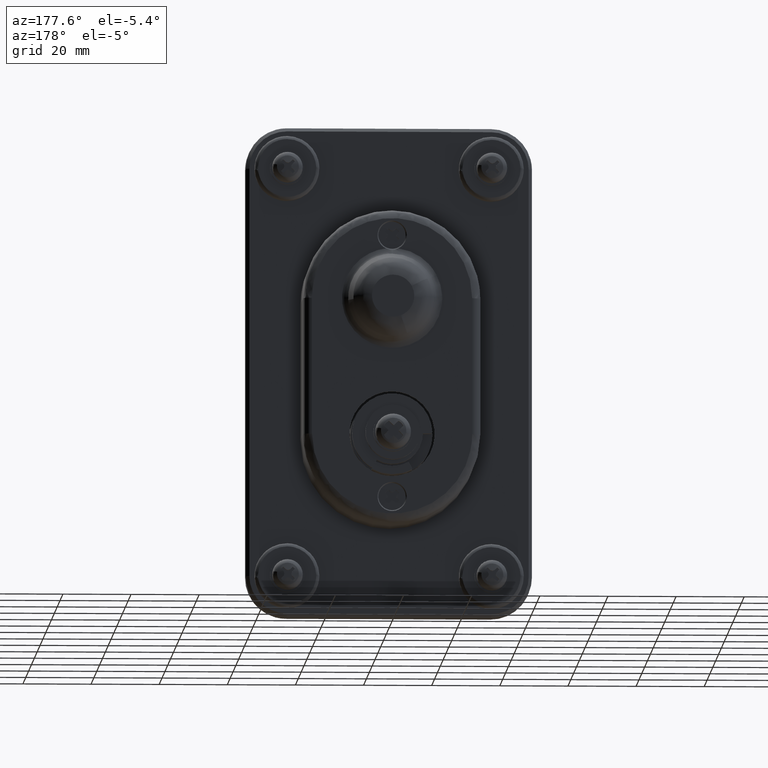
[diagram: clean part render]
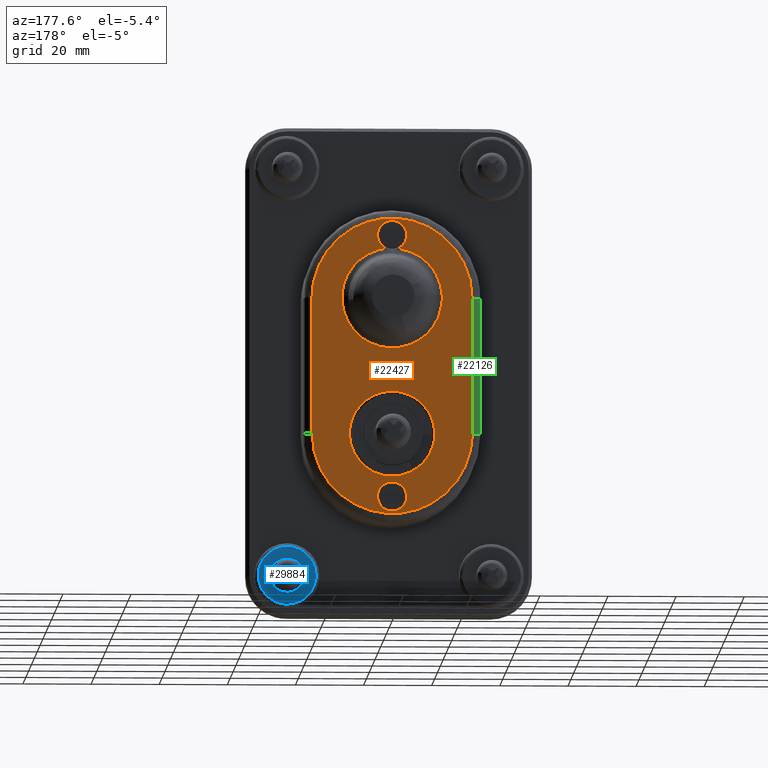
[diagram: same view with three faces highlighted in distinct colors, each labeled with its STEP entity id]
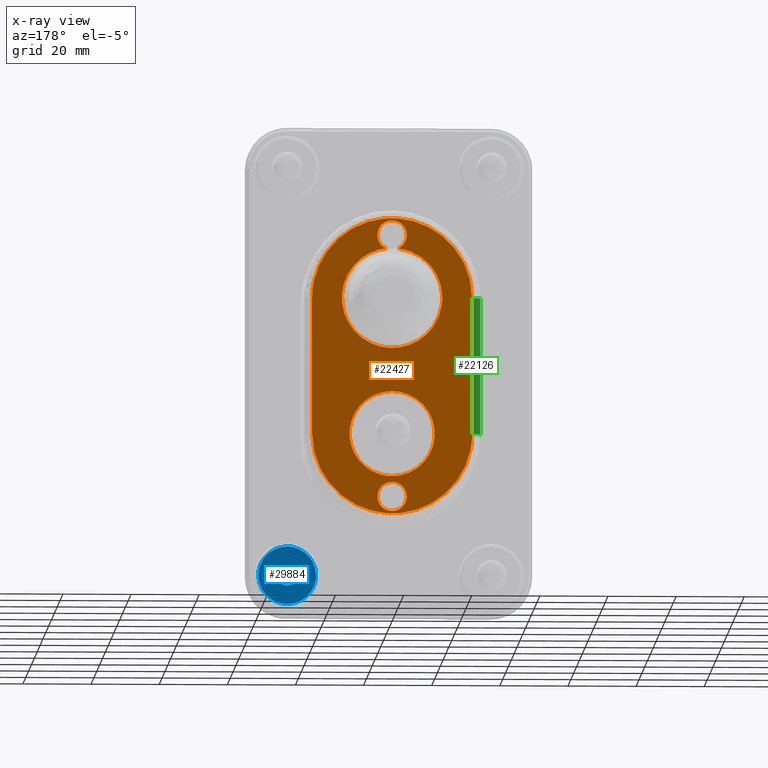
[diagram: x-ray of the same camera — body ghosted, the three highlighted faces saturated]
A machine part, auxiliary view with three faces highlighted in distinct colors.
The next image is the same camera in x-ray (body ghosted, the three faces saturated) — at least one of them is partly hidden behind the body in this view.
Their STEP definitions:

[orange] entity #22427 — the highlighted face is a freeform B-spline surface patch.
#19935=CARTESIAN_POINT('',(-5.323928E-018,-12.412620924720960,1.475412409796780));
#19936=VERTEX_POINT('',#19935);
#19942=CARTESIAN_POINT('',(0.0,0.0,-12.499999999983940));
#19943=VERTEX_POINT('',#19942);
#19944=CARTESIAN_POINT('',(-5.323928E-018,-12.412620924720958,1.475412409796780));
#19945=CARTESIAN_POINT('',(0.0,-12.499999999999995,0.740293651896161));
#19946=CARTESIAN_POINT('',(0.0,-12.500000000000000,1.606537E-011));
#19947=CARTESIAN_POINT('',(0.0,-12.499999999999998,-12.499999999983935));
#19948=CARTESIAN_POINT('',(0.0,0.0,-12.499999999983940));
#19956=(BOUNDED_CURVE()B_SPLINE_CURVE(2,(#19944,#19945,#19946,#19947,#19948),.UNSPECIFIED.,.F.,.U.)B_SPLINE_CURVE_WITH_KNOTS((3,2,3),(0.229562684873946,0.250000000000000,0.500000000000000),.UNSPECIFIED.)CURVE()GEOMETRIC_REPRESENTATION_ITEM()RATIONAL_B_SPLINE_CURVE((0.956027168459226,0.976056195955301,1.0,0.707106781186547,1.0))REPRESENTATION_ITEM(''));
#19957=EDGE_CURVE('',#19936,#19943,#19956,.T.);
#19959=CARTESIAN_POINT('',(-5.204170E-018,12.476684980260870,-0.763106744373471));
#19960=VERTEX_POINT('',#19959);
#19961=CARTESIAN_POINT('',(0.0,0.0,-12.499999999983940));
#19962=CARTESIAN_POINT('',(0.0,11.758825835936333,-12.499999999983933));
#19963=CARTESIAN_POINT('',(-5.204170E-018,12.476684980260867,-0.763106744373471));
#19971=(BOUNDED_CURVE()B_SPLINE_CURVE(2,(#19961,#19962,#19963),.UNSPECIFIED.,.F.,.U.)B_SPLINE_CURVE_WITH_KNOTS((3,3),(0.500000000000000,0.739332962236332),.UNSPECIFIED.)CURVE()GEOMETRIC_REPRESENTATION_ITEM()RATIONAL_B_SPLINE_CURVE((1.0,0.719603993289769,0.976072041661121))REPRESENTATION_ITEM(''));
#19972=EDGE_CURVE('',#19943,#19960,#19971,.T.);
#20046=CARTESIAN_POINT('',(0.0,0.0,12.500000000016071));
#20047=VERTEX_POINT('',#20046);
#20048=CARTESIAN_POINT('',(-5.204170E-018,12.476684980260870,-0.763106744373471));
#20049=CARTESIAN_POINT('',(0.0,12.499999999999996,-0.381909541420691));
#20050=CARTESIAN_POINT('',(0.0,12.500000000000000,1.606537E-011));
#20051=CARTESIAN_POINT('',(0.0,12.499999999999998,12.500000000016064));
#20052=CARTESIAN_POINT('',(0.0,0.0,12.500000000016071));
#20060=(BOUNDED_CURVE()B_SPLINE_CURVE(2,(#20048,#20049,#20050,#20051,#20052),.UNSPECIFIED.,.F.,.U.)B_SPLINE_CURVE_WITH_KNOTS((3,2,3),(0.739332962236331,0.750000000000000,1.0),.UNSPECIFIED.)CURVE()GEOMETRIC_REPRESENTATION_ITEM()RATIONAL_B_SPLINE_CURVE((0.976072041661119,0.987502787896777,1.0,0.707106781186547,1.0))REPRESENTATION_ITEM(''));
#20061=EDGE_CURVE('',#19960,#20047,#20060,.T.);
#20063=CARTESIAN_POINT('',(0.0,0.0,12.500000000016071));
#20064=CARTESIAN_POINT('',(0.0,-11.102195556714531,12.500000000016065));
#20065=CARTESIAN_POINT('',(-5.323928E-018,-12.412620924720958,1.475412409796780));
#20073=(BOUNDED_CURVE()B_SPLINE_CURVE(2,(#20063,#20064,#20065),.UNSPECIFIED.,.F.,.U.)B_SPLINE_CURVE_WITH_KNOTS((3,3),(0.0,0.229562684873946),.UNSPECIFIED.)CURVE()GEOMETRIC_REPRESENTATION_ITEM()RATIONAL_B_SPLINE_CURVE((1.0,0.731050585231246,0.956027168459226))REPRESENTATION_ITEM(''));
#20074=EDGE_CURVE('',#20047,#19936,#20073,.T.);
#20115=CARTESIAN_POINT('',(2.825475E-010,-4.266744777370700,-19.033750418427051));
#20116=VERTEX_POINT('',#20115);
#20122=CARTESIAN_POINT('',(0.0,1.608669E-011,-22.800000058369331));
#20123=VERTEX_POINT('',#20122);
#20124=CARTESIAN_POINT('',(2.825475E-010,-4.266744777370700,-19.033750418427040));
#20125=CARTESIAN_POINT('',(0.0,-3.795604028190424,-22.800000058369331));
#20126=CARTESIAN_POINT('',(0.0,1.608669E-011,-22.800000058369331));
#20134=(BOUNDED_CURVE()B_SPLINE_CURVE(2,(#20124,#20125,#20126),.UNSPECIFIED.,.F.,.U.)B_SPLINE_CURVE_WITH_KNOTS((3,3),(0.271473929146011,0.500000000000000),.UNSPECIFIED.)CURVE()GEOMETRIC_REPRESENTATION_ITEM()RATIONAL_B_SPLINE_CURVE((0.954005429934510,0.732265054099136,1.0))REPRESENTATION_ITEM(''));
#20135=EDGE_CURVE('',#20116,#20123,#20134,.T.);
#20137=CARTESIAN_POINT('',(3.246926E-010,4.299836327879188,-18.462475894437681));
#20138=VERTEX_POINT('',#20137);
#20139=CARTESIAN_POINT('',(0.0,1.608669E-011,-22.800000058369331));
#20140=CARTESIAN_POINT('',(0.0,4.300000058401662,-22.800000058369324));
#20141=CARTESIAN_POINT('',(0.0,4.300000058401662,-18.499999999983750));
#20142=CARTESIAN_POINT('',(0.0,4.300000058401662,-18.481237588809112));
#20143=CARTESIAN_POINT('',(3.246926E-010,4.299836327879188,-18.462475894437681));
#20151=(BOUNDED_CURVE()B_SPLINE_CURVE(2,(#20139,#20140,#20141,#20142,#20143),.UNSPECIFIED.,.F.,.U.)B_SPLINE_CURVE_WITH_KNOTS((3,2,3),(0.500000000000000,0.750000000000000,0.751539894530859),.UNSPECIFIED.)CURVE()GEOMETRIC_REPRESENTATION_ITEM()RATIONAL_B_SPLINE_CURVE((1.0,0.707106781186548,1.0,0.998195901336894,0.996414027647104))REPRESENTATION_ITEM(''));
#20152=EDGE_CURVE('',#20123,#20138,#20151,.T.);
#20232=CARTESIAN_POINT('',(0.0,1.608669E-011,-14.199999941598181));
#20233=VERTEX_POINT('',#20232);
#20234=CARTESIAN_POINT('',(3.246926E-010,4.299836327879188,-18.462475894437677));
#20235=CARTESIAN_POINT('',(0.0,4.262638258712507,-14.199999941598170));
#20236=CARTESIAN_POINT('',(0.0,1.608669E-011,-14.199999941598181));
#20244=(BOUNDED_CURVE()B_SPLINE_CURVE(2,(#20234,#20235,#20236),.UNSPECIFIED.,.F.,.U.)B_SPLINE_CURVE_WITH_KNOTS((3,3),(0.751539894530859,1.0),.UNSPECIFIED.)CURVE()GEOMETRIC_REPRESENTATION_ITEM()RATIONAL_B_SPLINE_CURVE((0.996414027647103,0.708910879849654,1.0))REPRESENTATION_ITEM(''));
#20245=EDGE_CURVE('',#20138,#20233,#20244,.T.);
#20247=CARTESIAN_POINT('',(0.0,1.608669E-011,-14.199999941598181));
#20248=CARTESIAN_POINT('',(0.0,-4.300000058369487,-14.199999941598175));
#20249=CARTESIAN_POINT('',(0.0,-4.300000058369488,-18.499999999983750));
#20250=CARTESIAN_POINT('',(0.0,-4.300000058369489,-18.767911194259121));
#20251=CARTESIAN_POINT('',(2.825475E-010,-4.266744777370700,-19.033750418427040));
#20259=(BOUNDED_CURVE()B_SPLINE_CURVE(2,(#20247,#20248,#20249,#20250,#20251),.UNSPECIFIED.,.F.,.U.)B_SPLINE_CURVE_WITH_KNOTS((3,2,3),(0.0,0.250000000000000,0.271473929146011),.UNSPECIFIED.)CURVE()GEOMETRIC_REPRESENTATION_ITEM()RATIONAL_B_SPLINE_CURVE((1.0,0.707106781186548,1.0,0.974841727087411,0.954005429934510))REPRESENTATION_ITEM(''));
#20260=EDGE_CURVE('',#20233,#20116,#20259,.T.);
#20309=CARTESIAN_POINT('',(5.007169E-012,2.418673063347878,62.055245404021598));
#20310=VERTEX_POINT('',#20309);
#20316=CARTESIAN_POINT('',(0.0,-1.828868924395015,54.608276221751503));
#20317=VERTEX_POINT('',#20316);
#20318=CARTESIAN_POINT('',(5.007169E-012,2.418673063347878,62.055245404021598));
#20319=CARTESIAN_POINT('',(0.0,1.323987593371438,62.799964725971272));
#20320=CARTESIAN_POINT('',(0.0,1.608669E-011,62.799964725971293));
#20321=CARTESIAN_POINT('',(0.0,-3.445848762328710,62.799964725971286));
#20322=CARTESIAN_POINT('',(0.0,-4.196680893643892,59.436911826664193));
#20323=CARTESIAN_POINT('',(0.0,-4.947513024959075,56.073858927357101));
#20324=CARTESIAN_POINT('',(0.0,-1.828868924395013,54.608276221751510));
#20332=(BOUNDED_CURVE()B_SPLINE_CURVE(2,(#20318,#20319,#20320,#20321,#20322,#20323,#20324),.UNSPECIFIED.,.F.,.U.)B_SPLINE_CURVE_WITH_KNOTS((3,2,2,3),(0.388919149487421,0.500000000000000,0.750000000000000,1.0),.UNSPECIFIED.)CURVE()GEOMETRIC_REPRESENTATION_ITEM()RATIONAL_B_SPLINE_CURVE((0.891537164882797,0.902404712095664,1.0,0.780350781763946,1.0,0.780350781763946,1.0))REPRESENTATION_ITEM(''));
#20333=EDGE_CURVE('',#20310,#20317,#20332,.T.);
#20335=CARTESIAN_POINT('',(1.054721E-016,1.828868924427200,54.608276221751503));
#20336=VERTEX_POINT('',#20335);
#20362=CARTESIAN_POINT('',(1.675138E-011,4.195279574568979,59.443166551383271));
#20363=VERTEX_POINT('',#20362);
#20364=CARTESIAN_POINT('',(0.0,1.828868924427192,54.608276221751517));
#20365=CARTESIAN_POINT('',(0.0,4.947513024991250,56.073858927357101));
#20366=CARTESIAN_POINT('',(0.0,4.196680893676064,59.436911826664193));
#20367=CARTESIAN_POINT('',(0.0,4.195982564996333,59.440039711304571));
#20368=CARTESIAN_POINT('',(1.675138E-011,4.195279574568979,59.443166551383271));
#20376=(BOUNDED_CURVE()B_SPLINE_CURVE(2,(#20364,#20365,#20366,#20367,#20368),.UNSPECIFIED.,.F.,.U.)B_SPLINE_CURVE_WITH_KNOTS((3,2,3),(0.0,0.250000000000000,0.250297888328569),.UNSPECIFIED.)CURVE()GEOMETRIC_REPRESENTATION_ITEM()RATIONAL_B_SPLINE_CURVE((1.0,0.780350781763946,1.0,0.999738276246032,0.999477176207678))REPRESENTATION_ITEM(''));
#20377=EDGE_CURVE('',#20336,#20363,#20376,.T.);
#20449=CARTESIAN_POINT('',(1.675138E-011,4.195279574568980,59.443166551383271));
#20450=CARTESIAN_POINT('',(0.0,3.822776499686377,61.100027683725344));
#20451=CARTESIAN_POINT('',(5.007169E-012,2.418673063347879,62.055245404021605));
#20459=(BOUNDED_CURVE()B_SPLINE_CURVE(2,(#20449,#20450,#20451),.UNSPECIFIED.,.F.,.U.)B_SPLINE_CURVE_WITH_KNOTS((3,3),(0.250297888328569,0.388919149487422),.UNSPECIFIED.)CURVE()GEOMETRIC_REPRESENTATION_ITEM()RATIONAL_B_SPLINE_CURVE((0.999477176207678,0.877975213444729,0.891537164882798))REPRESENTATION_ITEM(''));
#20460=EDGE_CURVE('',#20363,#20310,#20459,.T.);
#21310=CARTESIAN_POINT('',(4.288997E-016,12.989398401670901,46.929831731011546));
#21311=VERTEX_POINT('',#21310);
#21325=CARTESIAN_POINT('',(0.0,1.828868924427199,54.608276221751488));
#21326=CARTESIAN_POINT('',(0.0,9.398519748308528,53.660603445941327));
#21327=CARTESIAN_POINT('',(4.288997E-016,12.989398401670901,46.929831731011546));
#21335=(BOUNDED_CURVE()B_SPLINE_CURVE(2,(#21325,#21326,#21327),.UNSPECIFIED.,.F.,.U.)B_SPLINE_CURVE_WITH_KNOTS((3,3),(0.0,0.156967046000907),.UNSPECIFIED.)CURVE()GEOMETRIC_REPRESENTATION_ITEM()RATIONAL_B_SPLINE_CURVE((1.0,0.829707878771227,0.873257767354524))REPRESENTATION_ITEM(''));
#21336=EDGE_CURVE('',#20336,#21311,#21335,.T.);
#21339=CARTESIAN_POINT('',(3.921203E-016,14.598115815948740,38.091420030729907));
#21340=VERTEX_POINT('',#21339);
#21341=CARTESIAN_POINT('',(3.921203E-016,14.598115815948743,38.091420030729907));
#21342=CARTESIAN_POINT('',(0.0,12.922850608816679,25.277616756791669));
#21343=CARTESIAN_POINT('',(0.0,1.608669E-011,25.277616756791659));
#21344=CARTESIAN_POINT('',(0.0,-13.832950333228570,25.277616756791659));
#21345=CARTESIAN_POINT('',(0.0,-14.693811164825680,39.083754288724172));
#21346=CARTESIAN_POINT('',(0.0,-15.554671996422790,52.889891820656679));
#21347=CARTESIAN_POINT('',(0.0,-1.828868924395016,54.608276221751488));
#21355=(BOUNDED_CURVE()B_SPLINE_CURVE(2,(#21341,#21342,#21343,#21344,#21345,#21346,#21347),.UNSPECIFIED.,.F.,.U.)B_SPLINE_CURVE_WITH_KNOTS((3,2,2,3),(0.262204743771672,0.500000000000000,0.750000000000000,1.0),.UNSPECIFIED.)CURVE()GEOMETRIC_REPRESENTATION_ITEM()RATIONAL_B_SPLINE_CURVE((0.974811174959774,0.742018088299707,1.0,0.728777272734384,1.0,0.728777272734384,1.0))REPRESENTATION_ITEM(''));
#21356=EDGE_CURVE('',#21340,#20317,#21355,.T.);
#21393=CARTESIAN_POINT('',(4.288997E-016,12.989398401670902,46.929831731011561));
#21394=CARTESIAN_POINT('',(0.0,14.953486892564230,43.248328490302654));
#21395=CARTESIAN_POINT('',(0.0,14.693811164857850,39.083754288724151));
#21396=CARTESIAN_POINT('',(0.0,14.662772341530561,38.585966205032371));
#21397=CARTESIAN_POINT('',(3.921203E-016,14.598115815948749,38.091420030729914));
#21405=(BOUNDED_CURVE()B_SPLINE_CURVE(2,(#21393,#21394,#21395,#21396,#21397),.UNSPECIFIED.,.F.,.U.)B_SPLINE_CURVE_WITH_KNOTS((3,2,3),(0.156967046000906,0.250000000000000,0.262204743771672),.UNSPECIFIED.)CURVE()GEOMETRIC_REPRESENTATION_ITEM()RATIONAL_B_SPLINE_CURVE((0.873257767354524,0.899069393963157,1.0,0.986759184434676,0.974811174959774))REPRESENTATION_ITEM(''));
#21406=EDGE_CURVE('',#21311,#21340,#21405,.T.);
#22015=CARTESIAN_POINT('',(0.0,-23.499999999939401,8.750261E-012));
#22016=VERTEX_POINT('',#22015);
#22049=CARTESIAN_POINT('',(0.0,23.500000000074451,1.560487E-011));
#22050=VERTEX_POINT('',#22049);
#22064=CARTESIAN_POINT('',(0.0,-23.499999999939401,8.750261E-012));
#22065=CARTESIAN_POINT('',(0.0,-23.499999999932641,-23.499999999994625));
#22066=CARTESIAN_POINT('',(0.0,7.073321E-011,-23.499999999991189));
#22067=CARTESIAN_POINT('',(0.0,23.500000000074103,-23.499999999987764));
#22068=CARTESIAN_POINT('',(0.0,23.500000000074451,1.560487E-011));
#22076=(BOUNDED_CURVE()B_SPLINE_CURVE(2,(#22064,#22065,#22066,#22067,#22068),.UNSPECIFIED.,.F.,.U.)B_SPLINE_CURVE_WITH_KNOTS((3,2,3),(0.0,0.500000000000000,1.0),.UNSPECIFIED.)CURVE()GEOMETRIC_REPRESENTATION_ITEM()RATIONAL_B_SPLINE_CURVE((1.0,0.707106781186599,1.0,0.707106781186599,1.0))REPRESENTATION_ITEM(''));
#22077=EDGE_CURVE('',#22016,#22050,#22076,.T.);
#22098=CARTESIAN_POINT('',(0.0,23.500000000048800,39.999964667592501));
#22099=VERTEX_POINT('',#22098);
#22113=CARTESIAN_POINT('',(0.0,23.500000000074451,1.560487E-011));
#22114=CARTESIAN_POINT('',(0.0,23.500000000048800,39.999964667592501));
#22115=QUASI_UNIFORM_CURVE('',1,(#22113,#22114),.UNSPECIFIED.,.F.,.U.);
#22116=EDGE_CURVE('',#22050,#22099,#22115,.T.);
#22141=CARTESIAN_POINT('',(0.0,-23.499999999951001,39.999964667578553));
#22142=VERTEX_POINT('',#22141);
#22166=CARTESIAN_POINT('',(0.0,-23.499999999951001,39.999964667578553));
#22167=CARTESIAN_POINT('',(0.0,-23.499999999939401,8.750261E-012));
#22168=QUASI_UNIFORM_CURVE('',1,(#22166,#22167),.UNSPECIFIED.,.F.,.U.);
#22169=EDGE_CURVE('',#22142,#22016,#22168,.T.);
#22214=CARTESIAN_POINT('',(0.0,23.500000000048772,39.999964667592486));
#22215=CARTESIAN_POINT('',(0.0,23.500000000041787,63.499964667592472));
#22216=CARTESIAN_POINT('',(0.0,4.180610E-011,63.499964667585509));
#22217=CARTESIAN_POINT('',(0.0,-23.499999999958177,63.499964667578539));
#22218=CARTESIAN_POINT('',(0.0,-23.499999999951001,39.999964667578553));
#22226=(BOUNDED_CURVE()B_SPLINE_CURVE(2,(#22214,#22215,#22216,#22217,#22218),.UNSPECIFIED.,.F.,.U.)B_SPLINE_CURVE_WITH_KNOTS((3,2,3),(0.0,0.500000000000000,1.0),.UNSPECIFIED.)CURVE()GEOMETRIC_REPRESENTATION_ITEM()RATIONAL_B_SPLINE_CURVE((1.0,0.707106781186548,1.0,0.707106781186548,1.0))REPRESENTATION_ITEM(''));
#22227=EDGE_CURVE('',#22099,#22142,#22226,.T.);
#22396=CARTESIAN_POINT('',(0.0,-25.847649908857150,67.845614367494861));
#22397=CARTESIAN_POINT('',(0.0,25.847651169618839,67.845614367494861));
#22398=CARTESIAN_POINT('',(0.0,-25.847649908857150,-27.845650477740850));
#22399=CARTESIAN_POINT('',(0.0,25.847651169618839,-27.845650477740850));
#22400=B_SPLINE_SURFACE_WITH_KNOTS('',1,1,((#22396,#22398),(#22397,#22399)),.UNSPECIFIED.,.F.,.F.,.U.,(2,2),(2,2),(0.0,51.695301078475993),(0.0,95.691264845235708),.UNSPECIFIED.);
#22401=ORIENTED_EDGE('',*,*,#22169,.T.);
#22402=ORIENTED_EDGE('',*,*,#22077,.T.);
#22403=ORIENTED_EDGE('',*,*,#22116,.T.);
#22404=ORIENTED_EDGE('',*,*,#22227,.T.);
#22405=EDGE_LOOP('',(#22401,#22402,#22403,#22404));
#22406=FACE_OUTER_BOUND('',#22405,.T.);
#22407=ORIENTED_EDGE('',*,*,#21336,.T.);
#22408=ORIENTED_EDGE('',*,*,#21406,.T.);
#22409=ORIENTED_EDGE('',*,*,#21356,.T.);
#22410=ORIENTED_EDGE('',*,*,#20333,.F.);
#22411=ORIENTED_EDGE('',*,*,#20460,.F.);
#22412=ORIENTED_EDGE('',*,*,#20377,.F.);
#22413=EDGE_LOOP('',(#22407,#22408,#22409,#22410,#22411,#22412));
#22414=FACE_BOUND('',#22413,.T.);
#22415=ORIENTED_EDGE('',*,*,#20152,.F.);
#22416=ORIENTED_EDGE('',*,*,#20135,.F.);
#22417=ORIENTED_EDGE('',*,*,#20260,.F.);
#22418=ORIENTED_EDGE('',*,*,#20245,.F.);
#22419=EDGE_LOOP('',(#22415,#22416,#22417,#22418));
#22420=FACE_BOUND('',#22419,.T.);
#22421=ORIENTED_EDGE('',*,*,#19972,.F.);
#22422=ORIENTED_EDGE('',*,*,#19957,.F.);
#22423=ORIENTED_EDGE('',*,*,#20074,.F.);
#22424=ORIENTED_EDGE('',*,*,#20061,.F.);
#22425=EDGE_LOOP('',(#22421,#22422,#22423,#22424));
#22426=FACE_BOUND('',#22425,.T.);
#22427=ADVANCED_FACE('',(#22406,#22414,#22420,#22426),#22400,.F.);

[blue] entity #29884 — the highlighted face is a freeform B-spline surface patch.
#25400=CARTESIAN_POINT('',(-19.399999994671798,-27.005595604765649,-39.816872046997773));
#25401=VERTEX_POINT('',#25400);
#25407=CARTESIAN_POINT('',(-19.399999994671798,-29.999999999987150,-37.000017666323352));
#25408=VERTEX_POINT('',#25407);
#25409=CARTESIAN_POINT('',(-19.399999994671798,-29.999999999987150,-37.000017666323352));
#25410=CARTESIAN_POINT('',(-19.399999994671802,-27.177881800631638,-37.000017666323345));
#25411=CARTESIAN_POINT('',(-19.399999994671806,-27.005595604765649,-39.816872046997773));
#25419=(BOUNDED_CURVE()B_SPLINE_CURVE(2,(#25409,#25410,#25411),.UNSPECIFIED.,.F.,.U.)B_SPLINE_CURVE_WITH_KNOTS((3,3),(0.500000000000000,0.739332962158876),.UNSPECIFIED.)CURVE()GEOMETRIC_REPRESENTATION_ITEM()RATIONAL_B_SPLINE_CURVE((1.0,0.719603993380515,0.976072041495119))REPRESENTATION_ITEM(''));
#25420=EDGE_CURVE('',#25408,#25401,#25419,.T.);
#25422=CARTESIAN_POINT('',(-19.399999994671798,-32.979028578985961,-40.354120371069172));
#25423=VERTEX_POINT('',#25422);
#25424=CARTESIAN_POINT('',(-19.399999994671809,-32.979028578985954,-40.354120371069179));
#25425=CARTESIAN_POINT('',(-19.399999994671798,-32.999999999987153,-40.177690026062827));
#25426=CARTESIAN_POINT('',(-19.399999994671798,-32.999999999987153,-40.000017666323352));
#25427=CARTESIAN_POINT('',(-19.399999994671806,-32.999999999987160,-37.000017666323352));
#25428=CARTESIAN_POINT('',(-19.399999994671798,-29.999999999987150,-37.000017666323352));
#25436=(BOUNDED_CURVE()B_SPLINE_CURVE(2,(#25424,#25425,#25426,#25427,#25428),.UNSPECIFIED.,.F.,.U.)B_SPLINE_CURVE_WITH_KNOTS((3,2,3),(0.229562473427650,0.250000000000000,0.500000000000000),.UNSPECIFIED.)CURVE()GEOMETRIC_REPRESENTATION_ITEM()RATIONAL_B_SPLINE_CURVE((0.956026754015413,0.976055948230555,1.0,0.707106781186548,1.0))REPRESENTATION_ITEM(''));
#25437=EDGE_CURVE('',#25423,#25408,#25436,.T.);
#25481=CARTESIAN_POINT('',(-19.399999994671798,-29.999999999987150,-43.000017666323352));
#25482=VERTEX_POINT('',#25481);
#25483=CARTESIAN_POINT('',(-19.399999994671798,-29.999999999987150,-43.000017666323352));
#25484=CARTESIAN_POINT('',(-19.399999994671809,-32.664523576444168,-43.000017666323359));
#25485=CARTESIAN_POINT('',(-19.399999994671802,-32.979028578985961,-40.354120371069172));
#25493=(BOUNDED_CURVE()B_SPLINE_CURVE(2,(#25483,#25484,#25485),.UNSPECIFIED.,.F.,.U.)B_SPLINE_CURVE_WITH_KNOTS((3,3),(0.0,0.229562473427650),.UNSPECIFIED.)CURVE()GEOMETRIC_REPRESENTATION_ITEM()RATIONAL_B_SPLINE_CURVE((1.0,0.731050832955992,0.956026754015413))REPRESENTATION_ITEM(''));
#25494=EDGE_CURVE('',#25482,#25423,#25493,.T.);
#25496=CARTESIAN_POINT('',(-19.399999994671802,-27.005595604765649,-39.816872046997780));
#25497=CARTESIAN_POINT('',(-19.399999994671795,-26.999999999987153,-39.908359375704556));
#25498=CARTESIAN_POINT('',(-19.399999994671798,-26.999999999987150,-40.000017666323352));
#25499=CARTESIAN_POINT('',(-19.399999994671806,-26.999999999987153,-43.000017666323359));
#25500=CARTESIAN_POINT('',(-19.399999994671798,-29.999999999987150,-43.000017666323352));
#25508=(BOUNDED_CURVE()B_SPLINE_CURVE(2,(#25496,#25497,#25498,#25499,#25500),.UNSPECIFIED.,.F.,.U.)B_SPLINE_CURVE_WITH_KNOTS((3,2,3),(0.739332962158875,0.750000000000000,1.0),.UNSPECIFIED.)CURVE()GEOMETRIC_REPRESENTATION_ITEM()RATIONAL_B_SPLINE_CURVE((0.976072041495117,0.987502787806032,1.0,0.707106781186548,1.0))REPRESENTATION_ITEM(''));
#25509=EDGE_CURVE('',#25401,#25482,#25508,.T.);
#27927=CARTESIAN_POINT('',(-19.399999994503059,-38.479309440932141,-40.592750400310237));
#27928=VERTEX_POINT('',#27927);
#27942=CARTESIAN_POINT('',(-19.399999994501400,-29.999999999742279,-31.500017666537119));
#27943=VERTEX_POINT('',#27942);
#27944=CARTESIAN_POINT('',(-19.399999994501400,-29.999999999742279,-31.500017666537119));
#27945=CARTESIAN_POINT('',(-19.399999994502171,-38.500000565920736,-31.500017706129348));
#27946=CARTESIAN_POINT('',(-19.399999994502998,-38.500001173062827,-40.000017748555273));
#27947=CARTESIAN_POINT('',(-19.399999994503030,-38.500001194257614,-40.296745240241393));
#27948=CARTESIAN_POINT('',(-19.399999994503052,-38.479309440932148,-40.592750400310237));
#27956=(BOUNDED_CURVE()B_SPLINE_CURVE(2,(#27944,#27945,#27946,#27947,#27948),.UNSPECIFIED.,.F.,.U.)B_SPLINE_CURVE_WITH_KNOTS((3,2,3),(0.500000000000000,0.750000000000000,0.762166313677865),.UNSPECIFIED.)CURVE()GEOMETRIC_REPRESENTATION_ITEM()RATIONAL_B_SPLINE_CURVE((1.0,0.707106781186548,1.0,0.985746276903184,0.972879875936554))REPRESENTATION_ITEM(''));
#27957=EDGE_CURVE('',#27943,#27928,#27956,.T.);
#27959=CARTESIAN_POINT('',(-19.399999994503059,-21.500669906988168,-39.893206302370203));
#27960=VERTEX_POINT('',#27959);
#27961=CARTESIAN_POINT('',(-19.399999994503059,-21.500669906988175,-39.893206302370196));
#27962=CARTESIAN_POINT('',(-19.399999994502231,-21.606147996683820,-31.500017658876022));
#27963=CARTESIAN_POINT('',(-19.399999994501400,-29.999999999742279,-31.500017666537119));
#27971=(BOUNDED_CURVE()B_SPLINE_CURVE(2,(#27961,#27962,#27963),.UNSPECIFIED.,.F.,.U.)B_SPLINE_CURVE_WITH_KNOTS((3,3),(0.252215704281737,0.500000000000000),.UNSPECIFIED.)CURVE()GEOMETRIC_REPRESENTATION_ITEM()RATIONAL_B_SPLINE_CURVE((0.994854295175714,0.709702640222614,1.0))REPRESENTATION_ITEM(''));
#27972=EDGE_CURVE('',#27960,#27943,#27971,.T.);
#28018=CARTESIAN_POINT('',(-19.399999994501400,-29.999999999715719,-48.500017666504490));
#28019=VERTEX_POINT('',#28018);
#28020=CARTESIAN_POINT('',(-19.399999994501400,-29.999999999715719,-48.500017666504490));
#28021=CARTESIAN_POINT('',(-19.399999994502213,-21.499999398757737,-48.500017658938759));
#28022=CARTESIAN_POINT('',(-19.399999994503052,-21.499998790196791,-40.000017651307097));
#28023=CARTESIAN_POINT('',(-19.399999994503059,-21.499998786373034,-39.946609868410938));
#28024=CARTESIAN_POINT('',(-19.399999994503059,-21.500669906988175,-39.893206302370196));
#28032=(BOUNDED_CURVE()B_SPLINE_CURVE(2,(#28020,#28021,#28022,#28023,#28024),.UNSPECIFIED.,.F.,.U.)B_SPLINE_CURVE_WITH_KNOTS((3,2,3),(0.0,0.250000000000000,0.252215704281737),.UNSPECIFIED.)CURVE()GEOMETRIC_REPRESENTATION_ITEM()RATIONAL_B_SPLINE_CURVE((1.0,0.707106781186548,1.0,0.997404140963933,0.994854295175714))REPRESENTATION_ITEM(''));
#28033=EDGE_CURVE('',#28019,#27960,#28032,.T.);
#28035=CARTESIAN_POINT('',(-19.399999994503059,-38.479309440932141,-40.592750400310230));
#28036=CARTESIAN_POINT('',(-19.399999994502231,-37.926563798781203,-48.500017708959128));
#28037=CARTESIAN_POINT('',(-19.399999994501400,-29.999999999715719,-48.500017666504490));
#28045=(BOUNDED_CURVE()B_SPLINE_CURVE(2,(#28035,#28036,#28037),.UNSPECIFIED.,.F.,.U.)B_SPLINE_CURVE_WITH_KNOTS((3,3),(0.762166313677865,1.0),.UNSPECIFIED.)CURVE()GEOMETRIC_REPRESENTATION_ITEM()RATIONAL_B_SPLINE_CURVE((0.972879875936554,0.721360504283364,1.0))REPRESENTATION_ITEM(''));
#28046=EDGE_CURVE('',#27928,#28019,#28045,.T.);
#29867=CARTESIAN_POINT('',(-19.399999994544000,-20.651601313336720,-30.650867000402162));
#29868=CARTESIAN_POINT('',(-19.399999994544000,-20.651601313307520,-49.349169396553158));
#29869=CARTESIAN_POINT('',(-19.399999994544000,-39.348099819945318,-30.650867000431361));
#29870=CARTESIAN_POINT('',(-19.399999994544000,-39.348099819916122,-49.349169396582361));
#29871=B_SPLINE_SURFACE_WITH_KNOTS('',1,1,((#29867,#29869),(#29868,#29870)),.UNSPECIFIED.,.F.,.F.,.U.,(2,2),(2,2),(0.0,18.698302396151000),(0.0,18.696498506608599),.UNSPECIFIED.);
#29872=ORIENTED_EDGE('',*,*,#28033,.T.);
#29873=ORIENTED_EDGE('',*,*,#27972,.T.);
#29874=ORIENTED_EDGE('',*,*,#27957,.T.);
#29875=ORIENTED_EDGE('',*,*,#28046,.T.);
#29876=EDGE_LOOP('',(#29872,#29873,#29874,#29875));
#29877=FACE_OUTER_BOUND('',#29876,.T.);
#29878=ORIENTED_EDGE('',*,*,#25420,.T.);
#29879=ORIENTED_EDGE('',*,*,#25509,.T.);
#29880=ORIENTED_EDGE('',*,*,#25494,.T.);
#29881=ORIENTED_EDGE('',*,*,#25437,.T.);
#29882=EDGE_LOOP('',(#29878,#29879,#29880,#29881));
#29883=FACE_BOUND('',#29882,.T.);
#29884=ADVANCED_FACE('',(#29877,#29883),#29871,.F.);

[green] entity #22126 — the highlighted face is a freeform B-spline surface patch.
#22032=CARTESIAN_POINT('',(-2.499999999999945,26.000000000074099,1.560426E-011));
#22033=VERTEX_POINT('',#22032);
#22049=CARTESIAN_POINT('',(0.0,23.500000000074451,1.560487E-011));
#22050=VERTEX_POINT('',#22049);
#22051=CARTESIAN_POINT('',(-2.499999999999945,26.000000000074099,1.560426E-011));
#22052=CARTESIAN_POINT('',(0.0,26.000000000074447,1.634017E-011));
#22053=CARTESIAN_POINT('',(0.0,23.500000000074451,1.560487E-011));
#22061=(BOUNDED_CURVE()B_SPLINE_CURVE(2,(#22051,#22052,#22053),.UNSPECIFIED.,.F.,.U.)CURVE()GEOMETRIC_REPRESENTATION_ITEM()QUASI_UNIFORM_CURVE()RATIONAL_B_SPLINE_CURVE((1.0,0.707106781186548,1.0))REPRESENTATION_ITEM(''));
#22062=EDGE_CURVE('',#22033,#22050,#22061,.T.);
#22082=CARTESIAN_POINT('',(-0.000856687561108,23.434557629292708,40.999963784281938));
#22083=CARTESIAN_POINT('',(-0.000856687561108,23.434557629305068,-1.024999094591824));
#22084=CARTESIAN_POINT('',(0.069321663162141,26.114560719419618,40.999963784282741));
#22085=CARTESIAN_POINT('',(0.069321663162141,26.114560719431964,-1.024999094591036));
#22086=CARTESIAN_POINT('',(-2.609048468413334,25.997620554017040,40.999963784282698));
#22087=CARTESIAN_POINT('',(-2.609048468413331,25.997620554029389,-1.024999094591070));
#22095=(BOUNDED_SURFACE()B_SPLINE_SURFACE(1,2,((#22082,#22084,#22086),(#22083,#22085,#22087)),.UNSPECIFIED.,.F.,.F.,.U.)B_SPLINE_SURFACE_WITH_KNOTS((2,2),(3,3),(0.0,42.024962878873772),(0.0,4.348123749609333),.UNSPECIFIED.)GEOMETRIC_REPRESENTATION_ITEM()RATIONAL_B_SPLINE_SURFACE(((1.0,0.681998360062498,1.0),(1.0,0.681998360062498,1.0)))REPRESENTATION_ITEM('')SURFACE());
#22096=CARTESIAN_POINT('',(-2.499999999999945,26.000000000062698,39.999964667593247));
#22097=VERTEX_POINT('',#22096);
#22098=CARTESIAN_POINT('',(0.0,23.500000000048800,39.999964667592501));
#22099=VERTEX_POINT('',#22098);
#22100=CARTESIAN_POINT('',(-2.499999999999945,26.000000000062698,39.999964667593247));
#22101=CARTESIAN_POINT('',(5.507747E-014,26.000000000048793,39.999964667593240));
#22102=CARTESIAN_POINT('',(5.507747E-014,23.500000000048800,39.999964667592501));
#22110=(BOUNDED_CURVE()B_SPLINE_CURVE(2,(#22100,#22101,#22102),.UNSPECIFIED.,.F.,.U.)CURVE()GEOMETRIC_REPRESENTATION_ITEM()QUASI_UNIFORM_CURVE()RATIONAL_B_SPLINE_CURVE((1.0,0.707106781186548,1.0))REPRESENTATION_ITEM(''));
#22111=EDGE_CURVE('',#22097,#22099,#22110,.T.);
#22112=ORIENTED_EDGE('',*,*,#22111,.T.);
#22113=CARTESIAN_POINT('',(0.0,23.500000000074451,1.560487E-011));
#22114=CARTESIAN_POINT('',(0.0,23.500000000048800,39.999964667592501));
#22115=QUASI_UNIFORM_CURVE('',1,(#22113,#22114),.UNSPECIFIED.,.F.,.U.);
#22116=EDGE_CURVE('',#22050,#22099,#22115,.T.);
#22117=ORIENTED_EDGE('',*,*,#22116,.F.);
#22118=ORIENTED_EDGE('',*,*,#22062,.F.);
#22119=CARTESIAN_POINT('',(-2.499999999999945,26.000000000062698,39.999964667593247));
#22120=CARTESIAN_POINT('',(-2.499999999999945,26.000000000074099,1.560426E-011));
#22121=QUASI_UNIFORM_CURVE('',1,(#22119,#22120),.UNSPECIFIED.,.F.,.U.);
#22122=EDGE_CURVE('',#22097,#22033,#22121,.T.);
#22123=ORIENTED_EDGE('',*,*,#22122,.F.);
#22124=EDGE_LOOP('',(#22112,#22117,#22118,#22123));
#22125=FACE_OUTER_BOUND('',#22124,.T.);
#22126=ADVANCED_FACE('',(#22125),#22095,.T.);